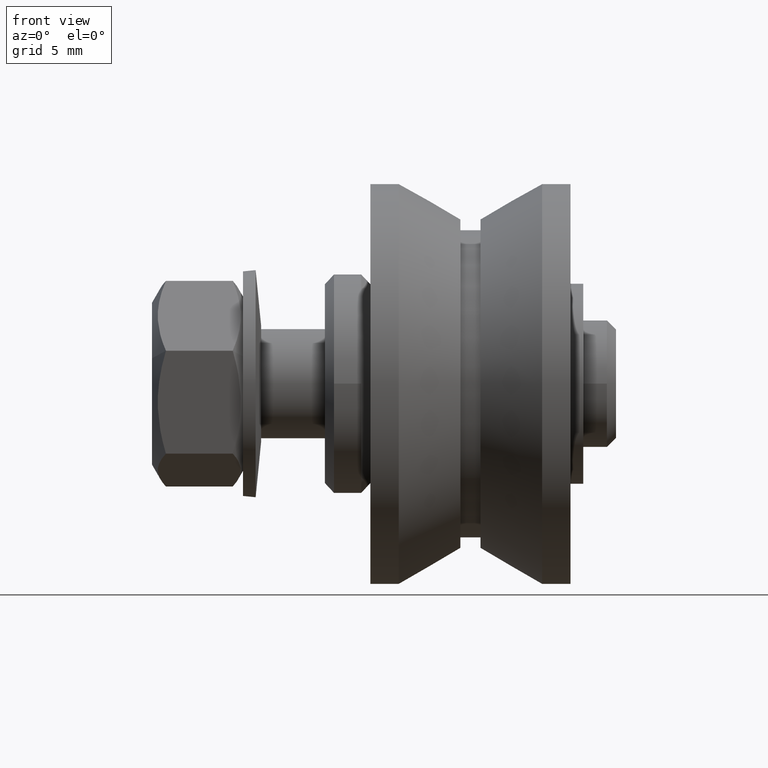
[diagram: clean part render]
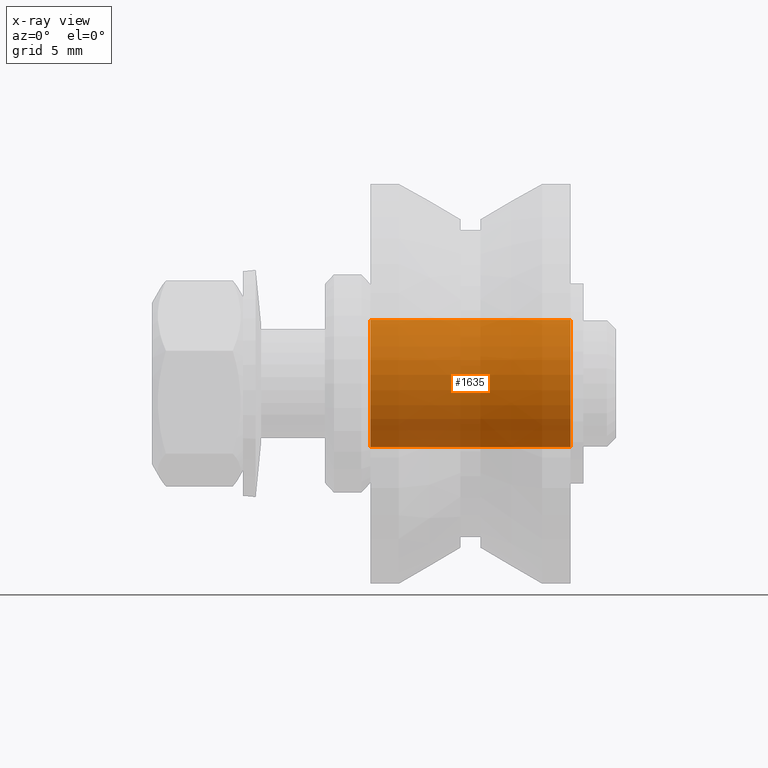
[diagram: x-ray — body ghosted, one internal face saturated and labeled with its STEP entity id]
A machine part, front view, then the same camera in x-ray: the body is ghosted and one INTERNAL B-rep face — a face not visible from any outside direction — is saturated and labeled: STEP entity #1635.
In plain terms, the highlighted cylindrical surface (bore or boss wall) has radius 3.5 mm, axis along (-1, 0, 0).
Its self-contained STEP definition (entity closure, byte-faithful):
#175=CYLINDRICAL_SURFACE('',#1934,3.5);
#253=FACE_OUTER_BOUND('',#369,.T.);
#369=EDGE_LOOP('',(#1347,#1348,#1349,#1350));
#483=LINE('',#2815,#603);
#603=VECTOR('',#2323,3.5);
#685=CIRCLE('',#1901,3.5);
#701=CIRCLE('',#1933,3.5);
#803=VERTEX_POINT('',#2755);
#819=VERTEX_POINT('',#2812);
#980=EDGE_CURVE('',#803,#803,#685,.T.);
#1005=EDGE_CURVE('',#819,#819,#701,.T.);
#1006=EDGE_CURVE('',#819,#803,#483,.T.);
#1347=ORIENTED_EDGE('',*,*,#1005,.T.);
#1348=ORIENTED_EDGE('',*,*,#1006,.T.);
#1349=ORIENTED_EDGE('',*,*,#980,.F.);
#1350=ORIENTED_EDGE('',*,*,#1006,.F.);
#1635=ADVANCED_FACE('',(#253),#175,.F.);
#1901=AXIS2_PLACEMENT_3D('',#2756,#2246,#2247);
#1933=AXIS2_PLACEMENT_3D('',#2813,#2319,#2320);
#1934=AXIS2_PLACEMENT_3D('',#2814,#2321,#2322);
#2246=DIRECTION('center_axis',(1.,0.,0.));
#2247=DIRECTION('ref_axis',(0.,1.,0.));
#2319=DIRECTION('center_axis',(1.,0.,0.));
#2320=DIRECTION('ref_axis',(0.,1.,0.));
#2321=DIRECTION('center_axis',(1.,0.,0.));
#2322=DIRECTION('ref_axis',(0.,1.,0.));
#2323=DIRECTION('',(-1.,0.,0.));
#2755=CARTESIAN_POINT('',(-5.5,-3.5,-4.28626379701574E-16));
#2756=CARTESIAN_POINT('Origin',(-5.5,0.,0.));
#2812=CARTESIAN_POINT('',(5.5,-3.5,-4.28626379701574E-16));
#2813=CARTESIAN_POINT('Origin',(5.5,0.,0.));
#2814=CARTESIAN_POINT('Origin',(-4.44089209850063E-15,0.,0.));
#2815=CARTESIAN_POINT('',(-4.44089209850063E-15,-3.5,-4.28626379701574E-16));